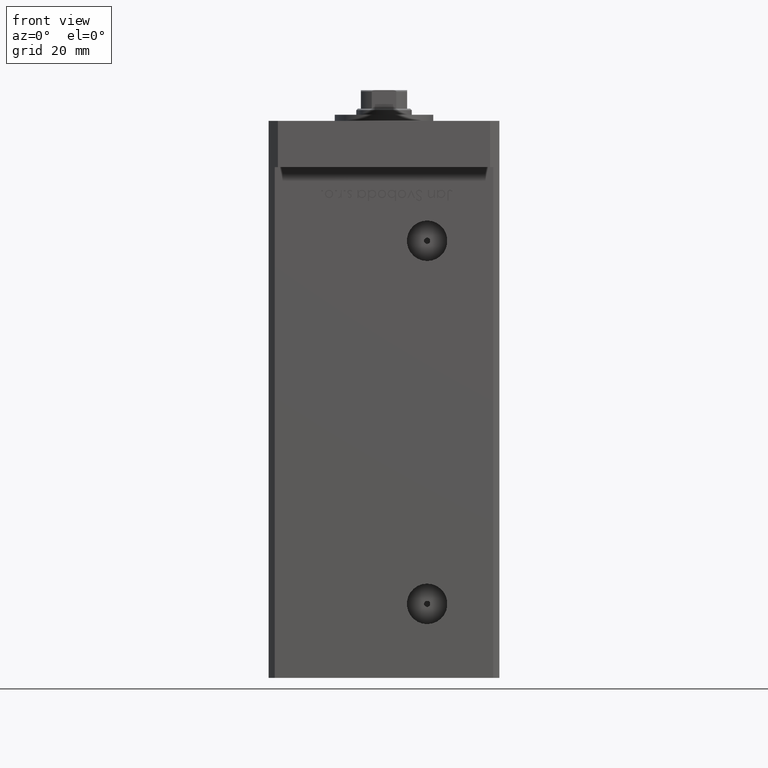
[diagram: clean part render]
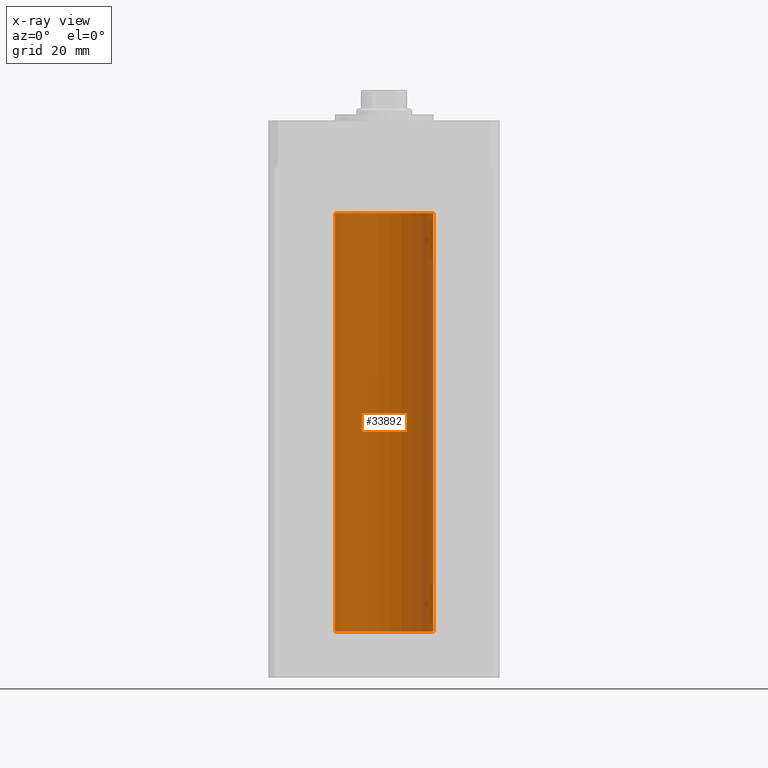
[diagram: x-ray — body ghosted, one internal face saturated and labeled with its STEP entity id]
A machine part, front view, then the same camera in x-ray: the body is ghosted and one INTERNAL B-rep face — a face not visible from any outside direction — is saturated and labeled: STEP entity #33892.
In plain terms, the highlighted cylindrical surface (partial cylindrical patch) has radius 16 mm, axis along (-0, -0, -1).
Its self-contained STEP definition (entity closure, byte-faithful):
#31 = AXIS2_PLACEMENT_3D ( 'NONE', #14326, #19194, #50942 ) ;
#2667 = FACE_OUTER_BOUND ( 'NONE', #29358, .T. ) ;
#3399 = CARTESIAN_POINT ( 'NONE',  ( -16.00000000000000000, 0.000000000000000000, 136.0000000000000000 ) ) ;
#3657 = ORIENTED_EDGE ( 'NONE', *, *, #15452, .F. ) ;
#5995 = VERTEX_POINT ( 'NONE', #40905 ) ;
#6631 = CARTESIAN_POINT ( 'NONE',  ( -16.00000000000000000, 0.000000000000000000, 0.000000000000000000 ) ) ;
#8126 = VECTOR ( 'NONE', #32404, 1000.000000000000000 ) ;
#8590 = DIRECTION ( 'NONE',  ( 1.000000000000000000, 0.000000000000000000, 0.000000000000000000 ) ) ;
#8877 = DIRECTION ( 'NONE',  ( -0.000000000000000000, 0.000000000000000000, 1.000000000000000000 ) ) ;
#10138 = EDGE_CURVE ( 'NONE', #5995, #33639, #17568, .T. ) ;
#13207 = CARTESIAN_POINT ( 'NONE',  ( 0.000000000000000000, 0.000000000000000000, 136.0000000000000000 ) ) ;
#14326 = CARTESIAN_POINT ( 'NONE',  ( 0.000000000000000000, 0.000000000000000000, 136.0000000000000000 ) ) ;
#15021 = LINE ( 'NONE', #27755, #15984 ) ;
#15278 = AXIS2_PLACEMENT_3D ( 'NONE', #38118, #50587, #8590 ) ;
#15452 = EDGE_CURVE ( 'NONE', #5995, #36272, #15021, .T. ) ;
#15984 = VECTOR ( 'NONE', #19095, 1000.000000000000000 ) ;
#16414 = CARTESIAN_POINT ( 'NONE',  ( -16.00000000000000000, 0.000000000000000000, 136.0000000000000000 ) ) ;
#17568 = CIRCLE ( 'NONE', #50488, 16.00000000000000000 ) ;
#19095 = DIRECTION ( 'NONE',  ( -0.000000000000000000, -0.000000000000000000, -1.000000000000000000 ) ) ;
#19194 = DIRECTION ( 'NONE',  ( -0.000000000000000000, -0.000000000000000000, -1.000000000000000000 ) ) ;
#19487 = CIRCLE ( 'NONE', #15278, 16.00000000000000000 ) ;
#19825 = ORIENTED_EDGE ( 'NONE', *, *, #41844, .T. ) ;
#20192 = EDGE_CURVE ( 'NONE', #36272, #22984, #19487, .T. ) ;
#22984 = VERTEX_POINT ( 'NONE', #6631 ) ;
#27755 = CARTESIAN_POINT ( 'NONE',  ( 16.00000000000000000, 1.959434878635765131E-15, 136.0000000000000000 ) ) ;
#29358 = EDGE_LOOP ( 'NONE', ( #3657, #52272, #19825, #32107 ) ) ;
#32107 = ORIENTED_EDGE ( 'NONE', *, *, #20192, .F. ) ;
#32404 = DIRECTION ( 'NONE',  ( -0.000000000000000000, -0.000000000000000000, -1.000000000000000000 ) ) ;
#33639 = VERTEX_POINT ( 'NONE', #16414 ) ;
#33892 = ADVANCED_FACE ( 'NONE', ( #2667 ), #51466, .F. ) ;
#36272 = VERTEX_POINT ( 'NONE', #40996 ) ;
#38118 = CARTESIAN_POINT ( 'NONE',  ( 0.000000000000000000, 0.000000000000000000, 0.000000000000000000 ) ) ;
#40530 = LINE ( 'NONE', #3399, #8126 ) ;
#40905 = CARTESIAN_POINT ( 'NONE',  ( 16.00000000000000000, 1.959434878635765131E-15, 136.0000000000000000 ) ) ;
#40996 = CARTESIAN_POINT ( 'NONE',  ( 16.00000000000000000, 1.959434878635765131E-15, 0.000000000000000000 ) ) ;
#41844 = EDGE_CURVE ( 'NONE', #33639, #22984, #40530, .T. ) ;
#46802 = DIRECTION ( 'NONE',  ( 1.000000000000000000, 0.000000000000000000, 0.000000000000000000 ) ) ;
#50488 = AXIS2_PLACEMENT_3D ( 'NONE', #13207, #8877, #46802 ) ;
#50587 = DIRECTION ( 'NONE',  ( -0.000000000000000000, 0.000000000000000000, 1.000000000000000000 ) ) ;
#50942 = DIRECTION ( 'NONE',  ( -1.000000000000000000, 0.000000000000000000, 0.000000000000000000 ) ) ;
#51466 = CYLINDRICAL_SURFACE ( 'NONE', #31, 16.00000000000000000 ) ;
#52272 = ORIENTED_EDGE ( 'NONE', *, *, #10138, .T. ) ;